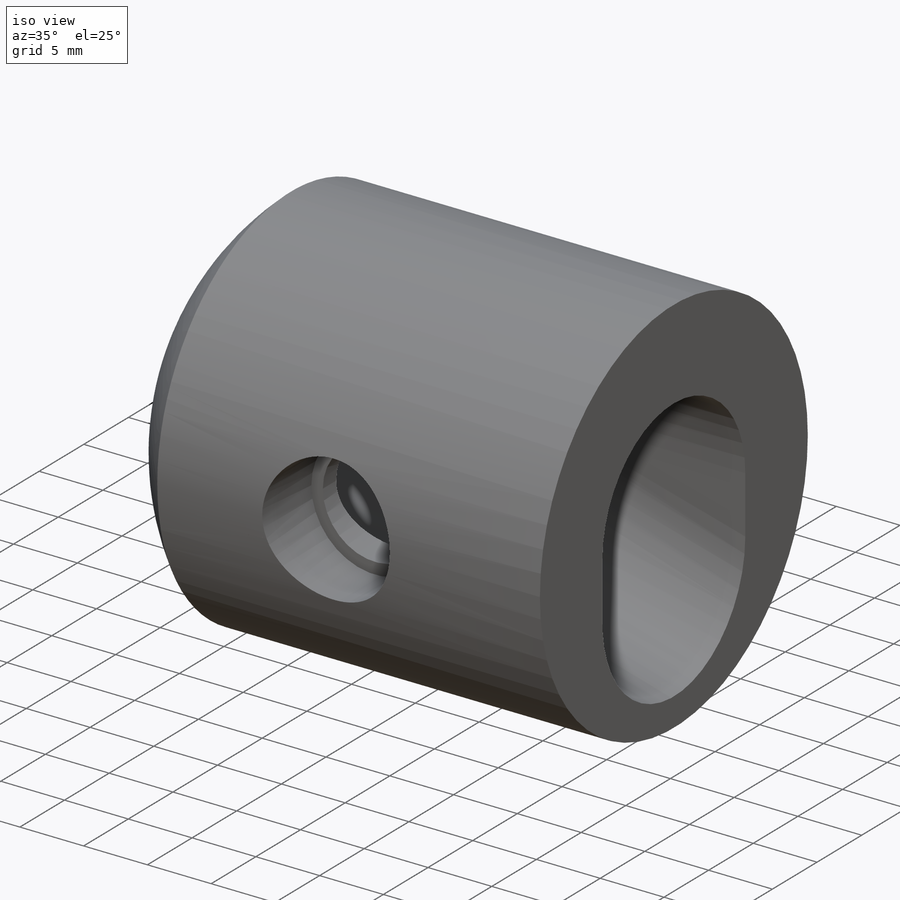
[diagram: iso view]
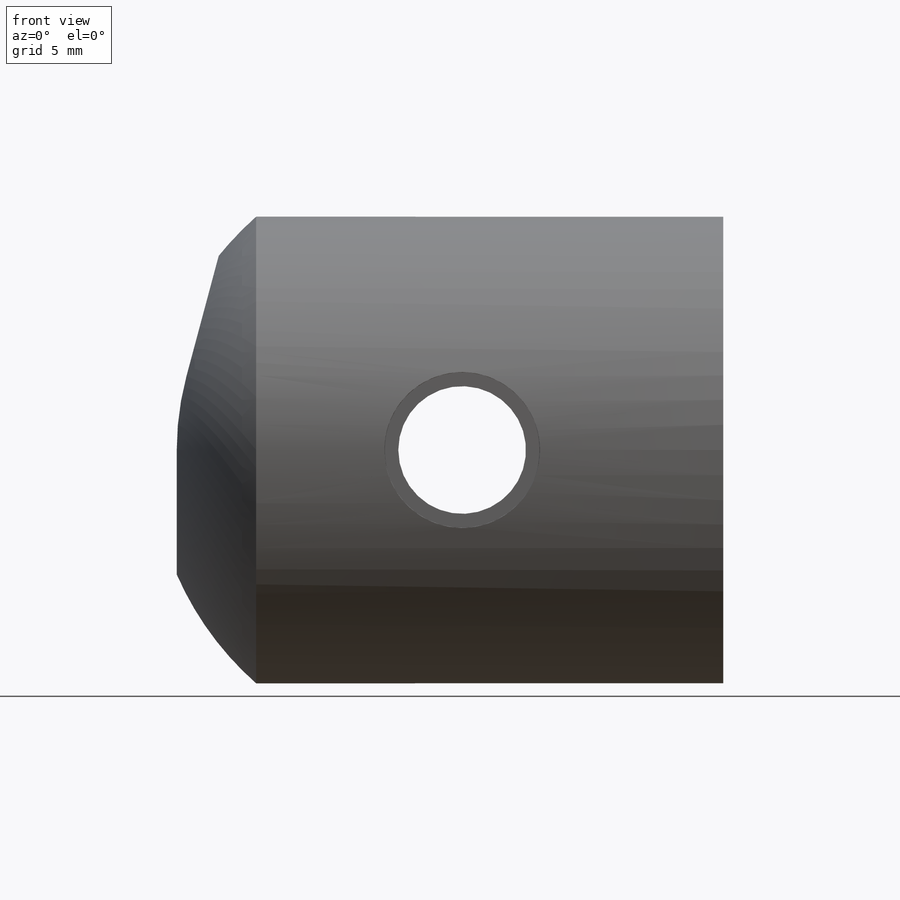
[diagram: front view]
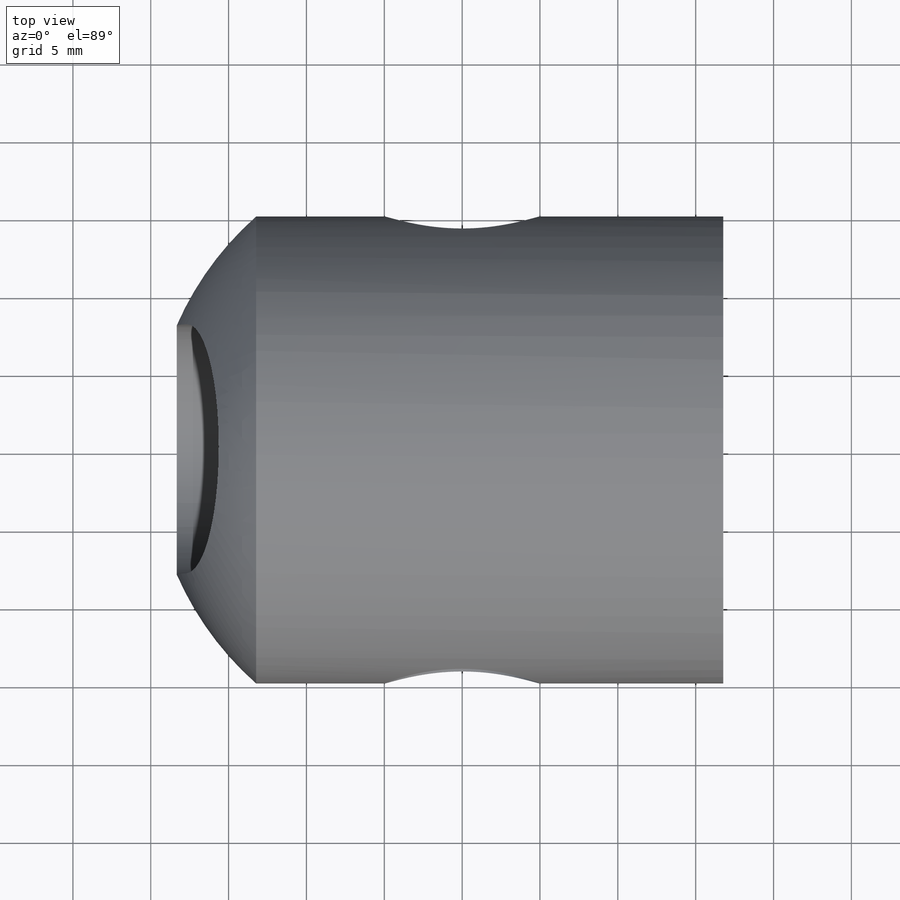
[diagram: top view]
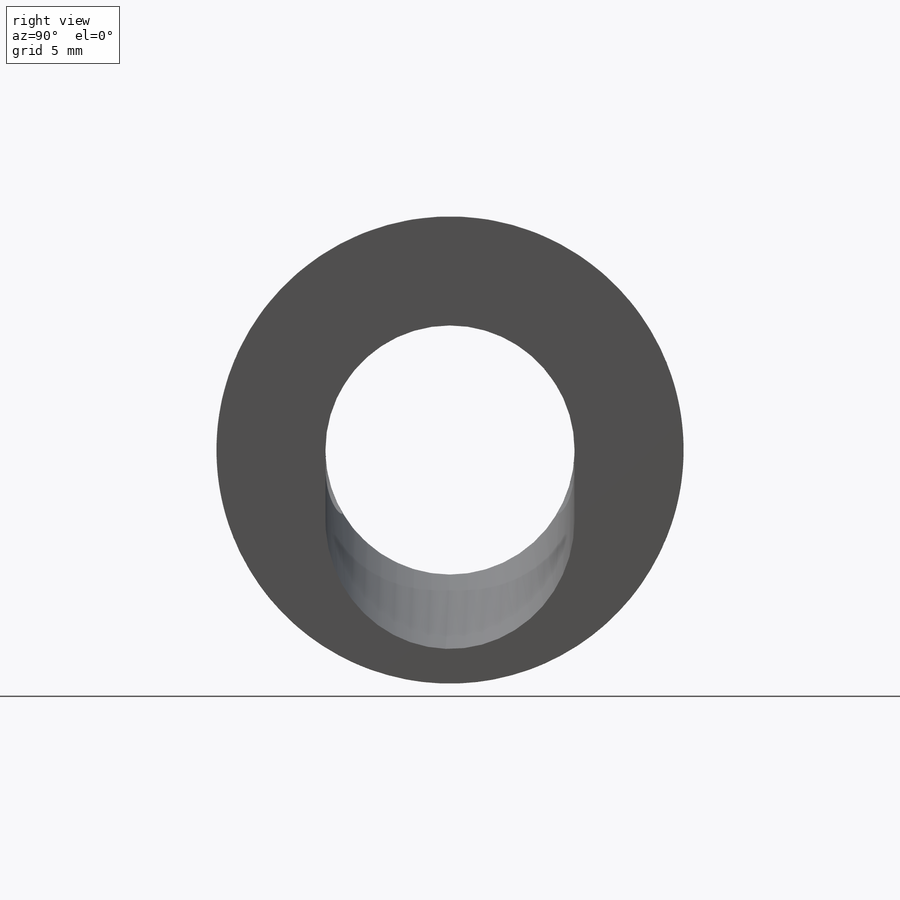
[diagram: right view]
SOLIDWORKS PART (.sldprt)
format: sldprt  version: not decoded by parser v0  size: 310,784 bytes
history: native  units: mm
features: sketch x6, plane x4, cut_extrude x2, material x1, revolve x1, cut_revolve x1 (+9 scaffold rows collapsed)
feature tree (24):
  scaffold x9  (default folders/planes/origin — collapsed)
  material  "1.4301 (X5CrNi18-10)"
  plane  "Vorne"
  plane  "Oben"
  plane  "Rechts"
  sketch  "Skizze3"  dims[c1.D1=40.0mm c1.D2=8.0mm c1.D3=~27.285839mm c2.D3=90.0deg c3.D3=50.0mm c3.D4=15.0mm c3.D5=30.0mm]
  sketch  "Skizze4"
  revolve  "Rotation1"  Angle=360deg
  sketch  "Skizze6"  dims[D1=4.1mm D2=1.5mm D3=1.5mm D4=5.0mm D5=1.0mm]
  cut_revolve  "Schnitt-Rotation1"  Angle=360deg
  sketch  "Skizze7"  dims[c1.D1=15.0mm c2.D1=15.0deg]
  plane  "Ebene1"
  sketch  "Skizze8"  dims[D1=16.0mm]
  cut_extrude  "Schnitt-Linear austragen1"  [1 undecoded]
  sketch  "Skizze9"
  cut_extrude  "Schnitt-Linear austragen2"  Depth=8mm
decode coverage: 7 of 10 modeling features carry decoded parameters
note: ~ marks probable driven/reference dimensions
note: 1 parameter value undecoded
note: suppression state not decoded; provenance and decode notes live in map.json
